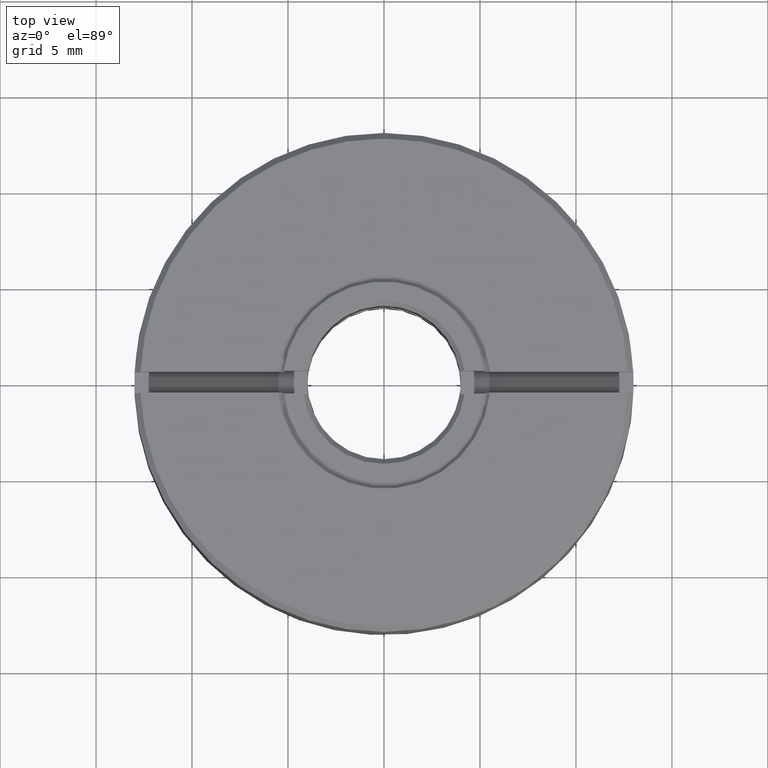
[diagram: clean part render]
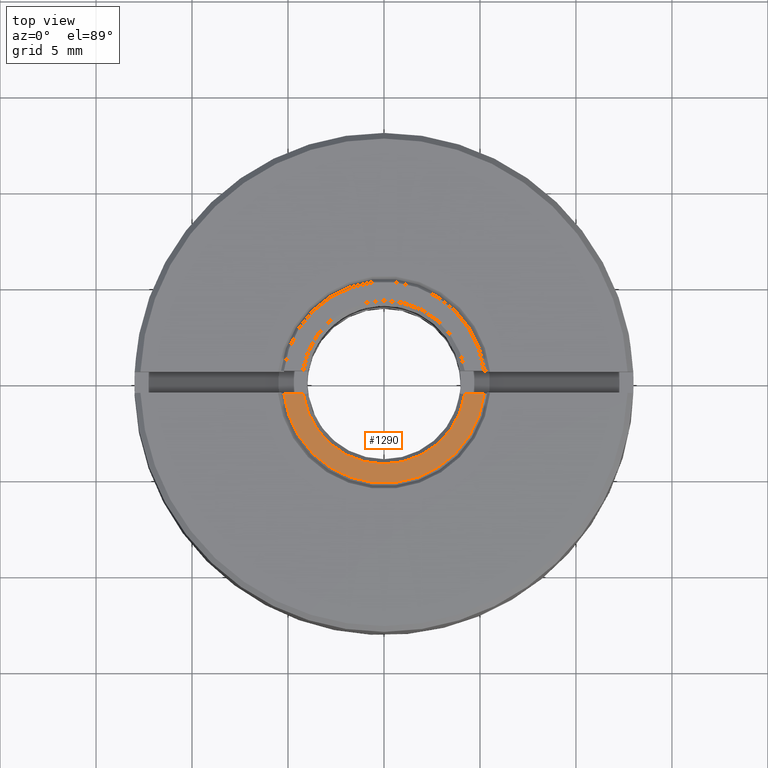
[diagram: same view with one face highlighted and labeled with its STEP entity id]
A machine part, top view. The second image highlights one B-rep face of the part: STEP entity #1290.
In plain terms, the highlighted planar face has unit normal (0, 0, 1).
Its self-contained STEP definition (entity closure, byte-faithful):
#18 = CARTESIAN_POINT ( 'NONE',  ( 0.000000000000000000, -0.5999999999999998668, 5.000000000000000000 ) ) ;
#86 = AXIS2_PLACEMENT_3D ( 'NONE', #88, #575, #448 ) ;
#88 = CARTESIAN_POINT ( 'NONE',  ( 0.000000000000000000, 0.000000000000000000, 5.000000000000000000 ) ) ;
#101 = EDGE_CURVE ( 'NONE', #1008, #956, #1264, .T. ) ;
#227 = ORIENTED_EDGE ( 'NONE', *, *, #917, .T. ) ;
#237 = EDGE_LOOP ( 'NONE', ( #1190, #227, #693, #1411 ) ) ;
#406 = VECTOR ( 'NONE', #654, 1000.000000000000000 ) ;
#412 = AXIS2_PLACEMENT_3D ( 'NONE', #1243, #1368, #619 ) ;
#444 = CARTESIAN_POINT ( 'NONE',  ( 0.000000000000000000, 0.000000000000000000, 5.000000000000000000 ) ) ;
#448 = DIRECTION ( 'NONE',  ( 1.000000000000000000, 0.000000000000000000, -0.000000000000000000 ) ) ;
#469 = DIRECTION ( 'NONE',  ( 0.000000000000000000, 0.000000000000000000, -1.000000000000000000 ) ) ;
#486 = CARTESIAN_POINT ( 'NONE',  ( -5.215601595162029369, -0.5999999999999998668, 4.999999999984440890 ) ) ;
#534 = CARTESIAN_POINT ( 'NONE',  ( -4.207433897293319625, -0.5999999999999998668, 4.999999999997735145 ) ) ;
#575 = DIRECTION ( 'NONE',  ( 0.000000000000000000, 0.000000000000000000, 1.000000000000000000 ) ) ;
#619 = DIRECTION ( 'NONE',  ( 1.000000000000000000, 0.000000000000000000, 0.000000000000000000 ) ) ;
#654 = DIRECTION ( 'NONE',  ( -1.000000000000000000, -0.000000000000000000, 0.000000000000000000 ) ) ;
#693 = ORIENTED_EDGE ( 'NONE', *, *, #101, .T. ) ;
#747 = CARTESIAN_POINT ( 'NONE',  ( 5.215601595159690795, -0.5999999999999998668, 4.999999999986763477 ) ) ;
#753 = VERTEX_POINT ( 'NONE', #1594 ) ;
#791 = EDGE_CURVE ( 'NONE', #1418, #956, #1455, .T. ) ;
#804 = CIRCLE ( 'NONE', #412, 4.250000000013187673 ) ;
#845 = CARTESIAN_POINT ( 'NONE',  ( 0.000000000000000000, -0.5999999999999998668, 5.000000000000000000 ) ) ;
#917 = EDGE_CURVE ( 'NONE', #753, #1008, #804, .T. ) ;
#956 = VERTEX_POINT ( 'NONE', #486 ) ;
#969 = DIRECTION ( 'NONE',  ( -1.000000000000000000, 0.000000000000000000, 0.000000000000000000 ) ) ;
#1008 = VERTEX_POINT ( 'NONE', #534 ) ;
#1014 = AXIS2_PLACEMENT_3D ( 'NONE', #444, #469, #969 ) ;
#1185 = EDGE_CURVE ( 'NONE', #1418, #753, #1555, .T. ) ;
#1190 = ORIENTED_EDGE ( 'NONE', *, *, #1185, .T. ) ;
#1200 = PLANE ( 'NONE',  #86 ) ;
#1229 = VECTOR ( 'NONE', #1334, 1000.000000000000000 ) ;
#1243 = CARTESIAN_POINT ( 'NONE',  ( 0.000000000000000000, 0.000000000000000000, 5.000000000000000000 ) ) ;
#1264 = LINE ( 'NONE', #18, #406 ) ;
#1290 = ADVANCED_FACE ( 'NONE', ( #1324 ), #1200, .T. ) ;
#1324 = FACE_OUTER_BOUND ( 'NONE', #237, .T. ) ;
#1334 = DIRECTION ( 'NONE',  ( -1.000000000000000000, -0.000000000000000000, 0.000000000000000000 ) ) ;
#1368 = DIRECTION ( 'NONE',  ( -0.000000000000000000, 0.000000000000000000, -1.000000000000000000 ) ) ;
#1411 = ORIENTED_EDGE ( 'NONE', *, *, #791, .F. ) ;
#1418 = VERTEX_POINT ( 'NONE', #747 ) ;
#1455 = CIRCLE ( 'NONE', #1014, 5.249999999932697392 ) ;
#1555 = LINE ( 'NONE', #845, #1229 ) ;
#1594 = CARTESIAN_POINT ( 'NONE',  ( 4.207433897292309766, -0.5999999999999998668, 4.999999999996736832 ) ) ;